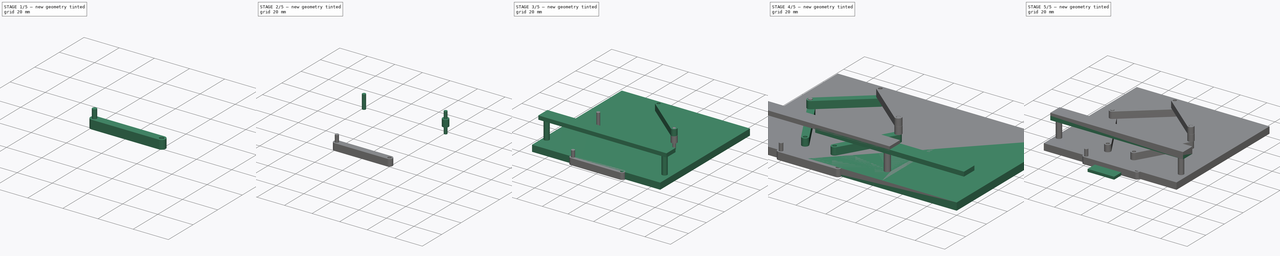
[diagram: build sequence overview — one tinted view per stage of 5, left to right]
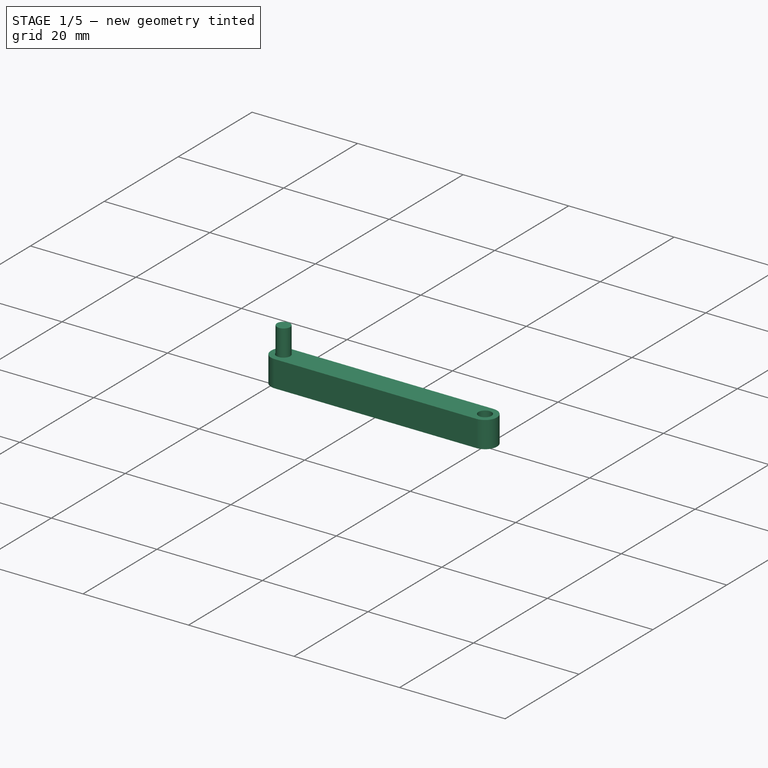
[diagram: stage 1 of 5 — iso view after this stage's code; geometry added in this stage tinted green]
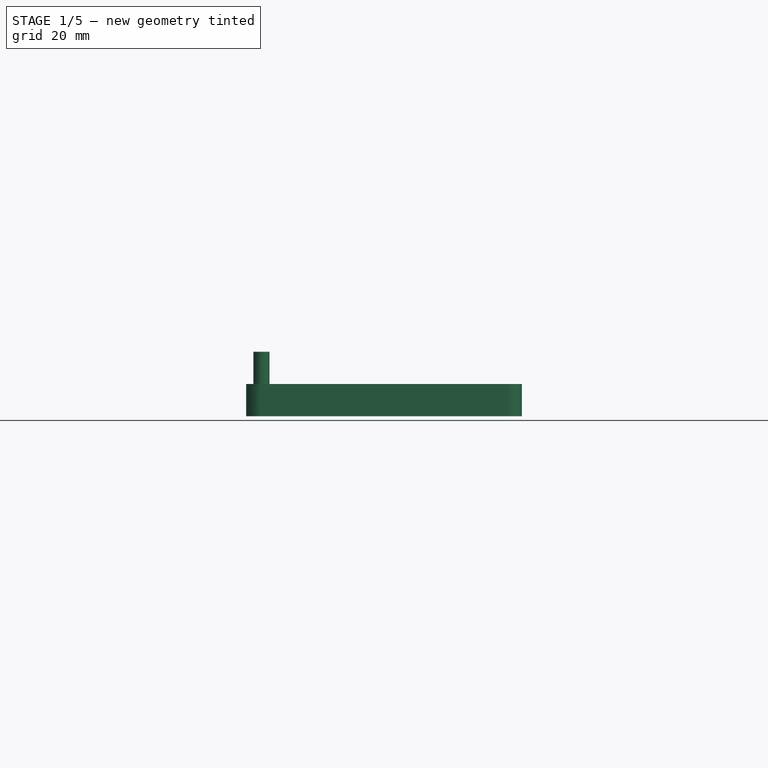
[diagram: stage 1 of 5 — front view after this stage's code; geometry added in this stage tinted green]
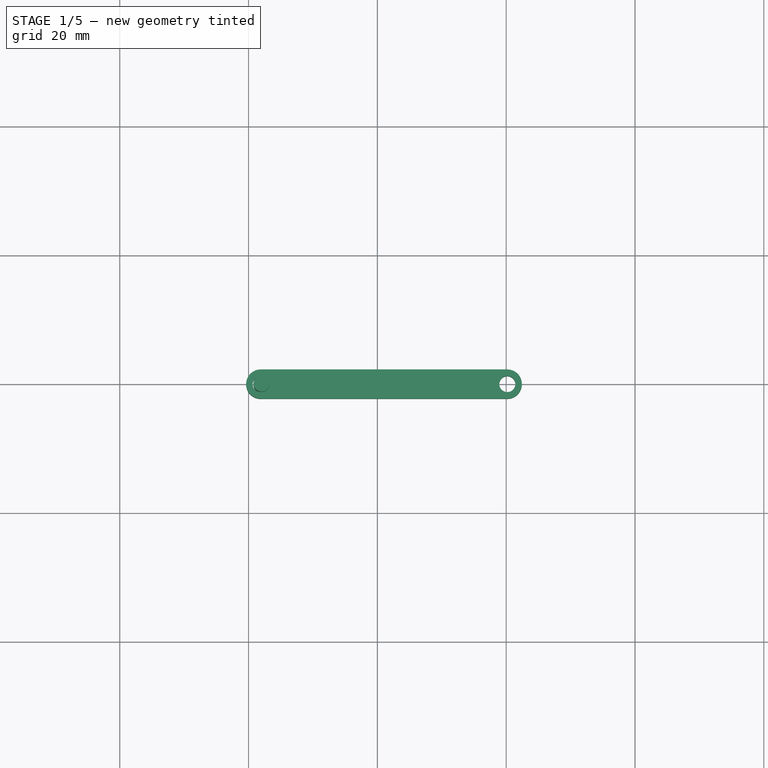
[diagram: stage 1 of 5 — top view after this stage's code; geometry added in this stage tinted green]
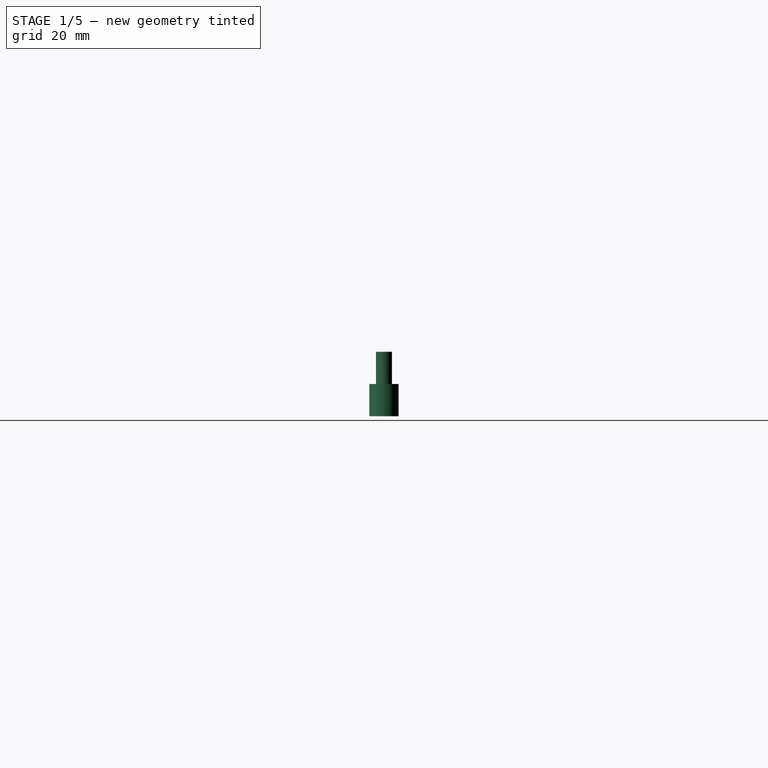
[diagram: stage 1 of 5 — right view after this stage's code; geometry added in this stage tinted green]
FCSTD DOCUMENT  (FreeCAD 0.19R24291 (Git))
Label: FBR_v2
License: All rights reserved
LicenseURL: http://en.wikipedia.org/wiki/All_rights_reserved
objects: Part::Feature×21, Part::FeaturePython×13, Part::Cylinder×6, PartDesign::Body×4, Part::MultiFuse×4, Sketcher::SketchObject×3, PartDesign::Pad×3, Part::Box×2, PartDesign::FeatureBase×1, PartDesign::Hole×1
note: 62 computed .brp shape members not serialized (recipe doc carries the construction recipe); baked Part::Feature solids carry a one-line shape summary decoded from their .brp

FEATURE [Part::FeaturePython] Clone005  label="def_ServoMotor_L_Scale"  # Draft clone (typed FeaturePython)
  AttacherType = Attacher::AttachEngine3D
  Fuse = false
  Objects = -> [Body003]
  Placement = pos=(10,12,11) rot=(1,0,0;1.5708rad)
  Scale = (0.1,0.1,0.1)
FEATURE [Part::FeaturePython] Clone006  label="def_ServoMotor_R_Scale"  # Draft clone (typed FeaturePython)
  AttacherType = Attacher::AttachEngine3D
  Fuse = false
  Objects = -> [Body003]
  Placement = pos=(-10,12,11) rot=(1,0,0;1.5708rad)
  Scale = (0.1,0.1,0.1)
FEATURE [Sketcher::SketchObject] Sketch
  FullyConstrained = false
  MapMode = 5
  Support = -> [XY_Plane004]
  sketch-geometry (4):
    g0: ArcOfCircle CenterX=-36.2276 CenterY=0 CenterZ=0 NormalX=0 NormalY=0 NormalZ=1 AngleXU=0 Radius=4.52517 StartAngle=1.5708 EndAngle=4.71239
    g1: ArcOfCircle CenterX=40.3501 CenterY=4e-16 CenterZ=0 NormalX=0 NormalY=0 NormalZ=1 AngleXU=0 Radius=4.52517 StartAngle=4.71239 EndAngle=7.85398
    g2: LineSegment StartX=-36.2276 StartY=-4.52517 StartZ=0 EndX=40.3501 EndY=-4.52517 EndZ=0
    g3: LineSegment StartX=-36.2276 StartY=4.52517 StartZ=0 EndX=40.3501 EndY=4.52517 EndZ=0
  constraints (7):
    c: Tangent(g0,g3) = 1.5708
    c: Tangent(g0,g2) = -1.5708
    c: Tangent(g2,g1) = -1.5708
    c: Tangent(g3,g1) = 1.5708
    c: Horizontal(g2)
    c: Equal(g0,g1)
    c: PointOnObject(g0,g-1)
FEATURE [PartDesign::Pad] Pad002
  Direction = (1,1,1)
  Length = 10
  Length2 = 100
  Profile = -> Sketch
  Type = 0
FEATURE [PartDesign::Hole] Hole
  BaseFeature = -> Pad002
  Depth = 25
  DepthType = 0
  Diameter = 5
  DrillForDepth = false
  DrillPoint = 1
  DrillPointAngle = 118
  HoleCutCountersinkAngle = 90
  HoleCutCustomValues = false
  HoleCutDepth = 0
  HoleCutDiameter = 6.1
  HoleCutType = 0
  ModelActualThread = false
  Profile = -> Pad002 [Face6]
  Tapered = false
  TaperedAngle = 90
  ThreadAngle = 0
  ThreadClass = 0
  ThreadCutOffInner = 0
  ThreadCutOffOuter = 0
  ThreadDirection = 0
  ThreadFit = 0
  ThreadPitch = 0
  ThreadSize = 0
  ThreadType = 0
  Threaded = false
FEATURE [Part::FeaturePython] Clone015  label="def_Link006_SampleScaled"  # Draft clone (typed FeaturePython)
  AttacherType = Attacher::AttachEngine3D
  Fuse = false
  Objects = -> [Body004]
  Scale = (0.5,0.5,0.5)
FEATURE [Part::Cylinder] Cylinder005  label="def_Link002_005"
  Angle = 360
  AttacherType = Attacher::AttachEngine3D
  Height = 10
  Placement = pos=(-18,0,0) rot=(0,0,1;0rad)
  Radius = 1.25
FEATURE [Part::MultiFuse] Fusion003
  Shapes = -> [Cylinder005,Clone015]
FEATURE [Part::Feature] pen001  label="def_PenTerminator001"
  shape: bbox 7.088 x 6.138 x 125.2 mm, 104 faces, 0 solids (baked)
FEATURE [Part::FeaturePython] Clone016  label="def_PenTerminal"  # Draft clone (typed FeaturePython)
  AttacherType = Attacher::AttachEngine3D
  Fuse = false
  Objects = -> [pen001]
  Scale = (0.5,0.5,0.2)
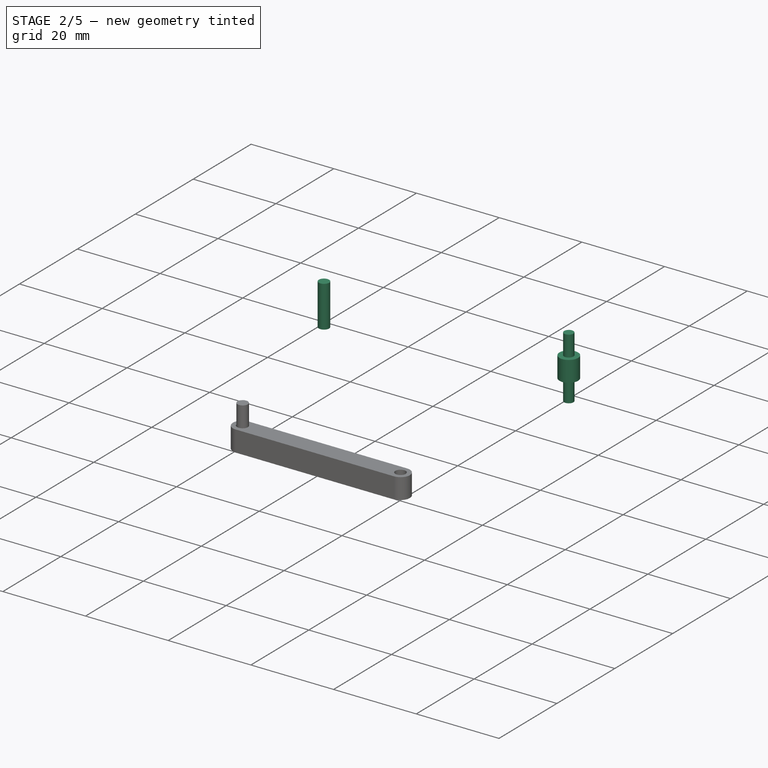
[diagram: stage 2 of 5 — iso view after this stage's code; geometry added in this stage tinted green]
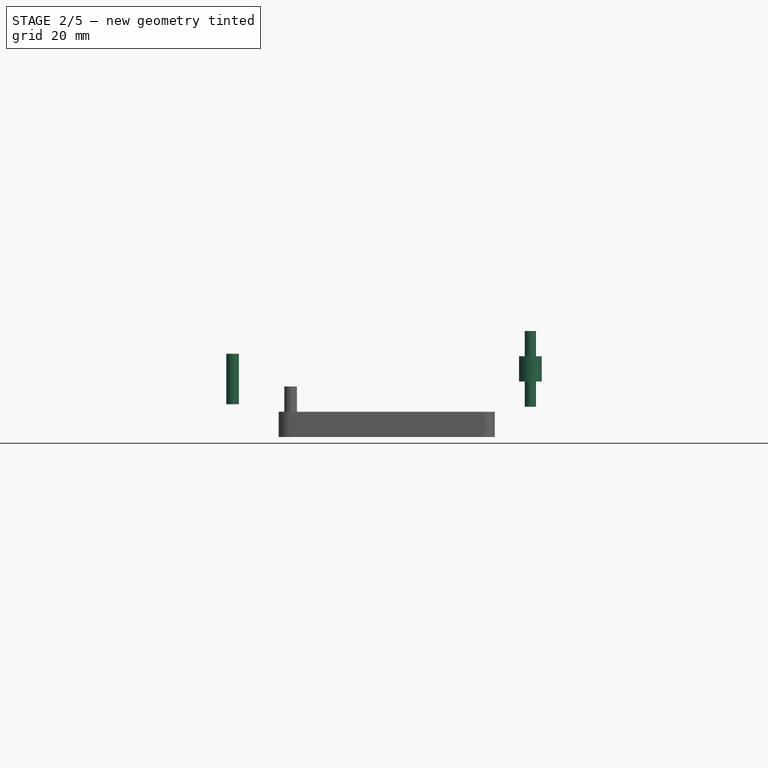
[diagram: stage 2 of 5 — front view after this stage's code; geometry added in this stage tinted green]
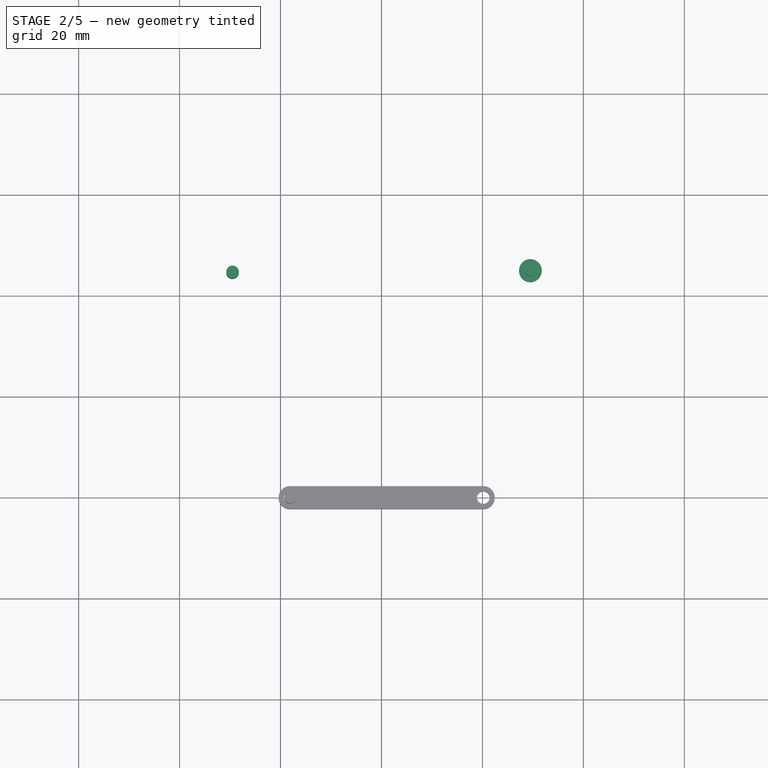
[diagram: stage 2 of 5 — top view after this stage's code; geometry added in this stage tinted green]
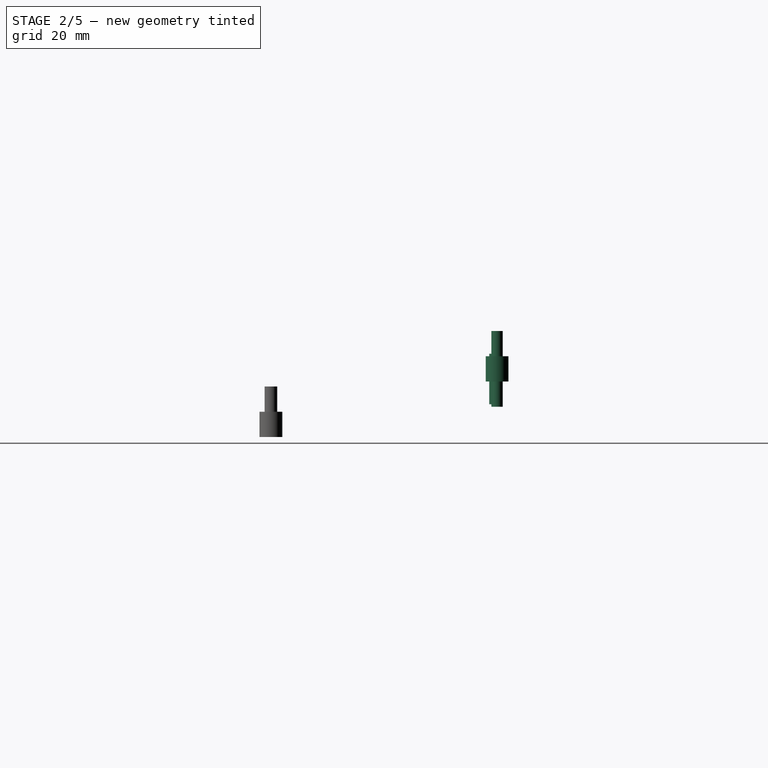
[diagram: stage 2 of 5 — right view after this stage's code; geometry added in this stage tinted green]
FEATURE [Part::Cylinder] Cylinder002
  Angle = 360
  AttacherType = Attacher::AttachEngine3D
  Height = 10
  Placement = pos=(0,10,5) rot=(0,0,1;0rad)
  Radius = 4.5
FEATURE [Part::Cylinder] Cylinder003
  Angle = 360
  AttacherType = Attacher::AttachEngine3D
  Height = 30
  Placement = pos=(0,10,-5) rot=(0,0,1;0rad)
  Radius = 2.25
FEATURE [Part::MultiFuse] Fusion002
  Shapes = -> [Cylinder003,Cylinder002]
FEATURE [Part::FeaturePython] Clone014  label="def_Link003_005"  # Draft clone (typed FeaturePython)
  AttacherType = Attacher::AttachEngine3D
  Fuse = false
  Objects = -> [Fusion002]
  Placement = pos=(29.5,39.8,8.5) rot=(0,0,1;0rad)
  Scale = (0.5,0.5,0.5)
FEATURE [Part::Cylinder] Cylinder004  label="def_Link002_004"
  Angle = 360
  AttacherType = Attacher::AttachEngine3D
  Height = 10
  Placement = pos=(-29.5,44.5,6.5) rot=(0,0,1;0rad)
  Radius = 1.25
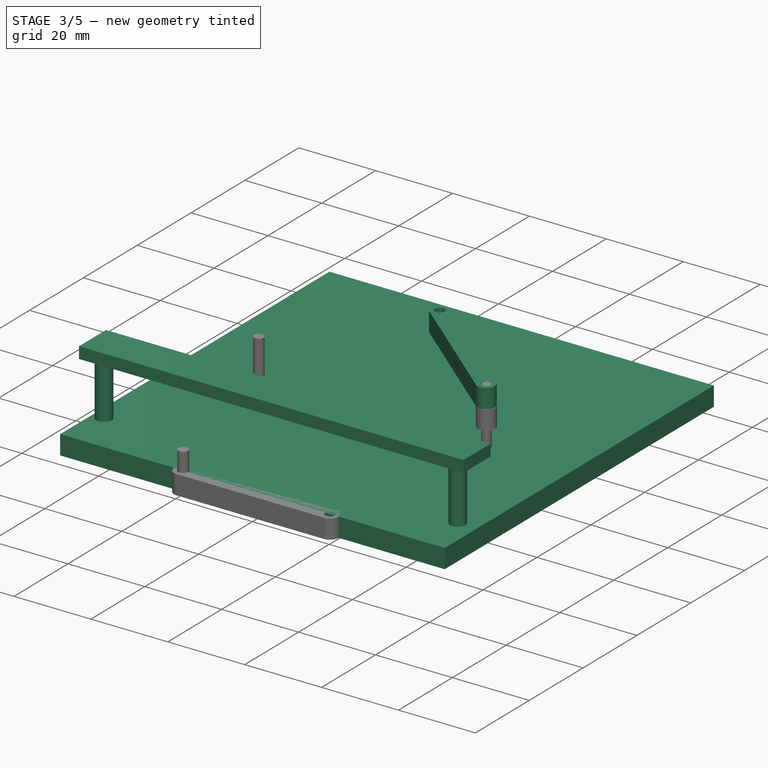
[diagram: stage 3 of 5 — iso view after this stage's code; geometry added in this stage tinted green]
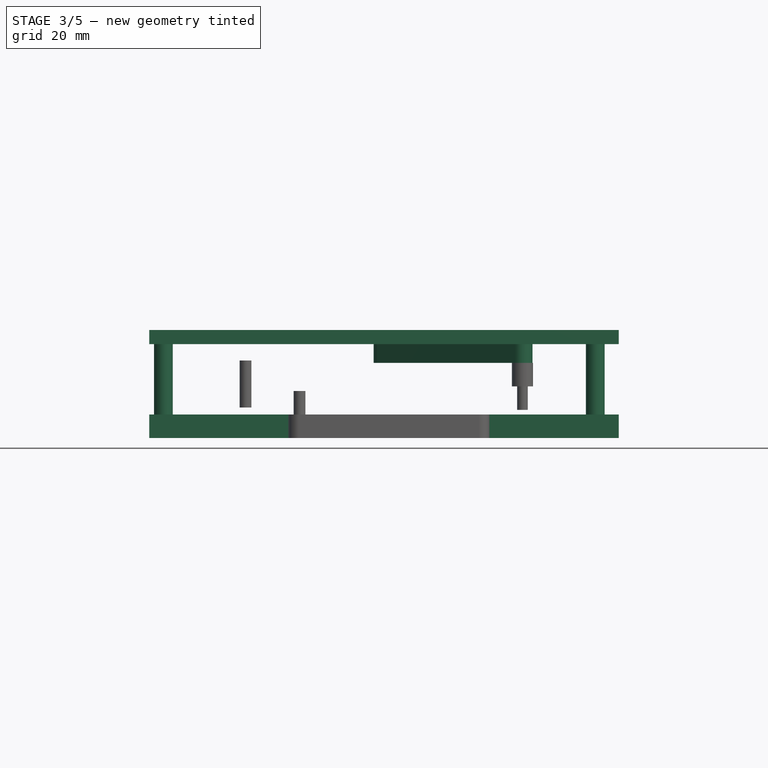
[diagram: stage 3 of 5 — front view after this stage's code; geometry added in this stage tinted green]
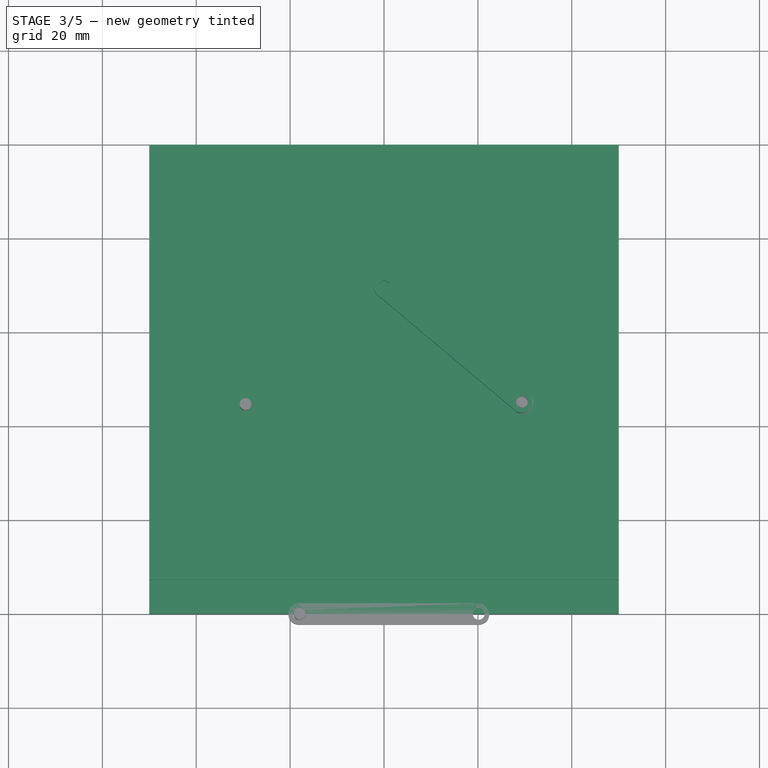
[diagram: stage 3 of 5 — top view after this stage's code; geometry added in this stage tinted green]
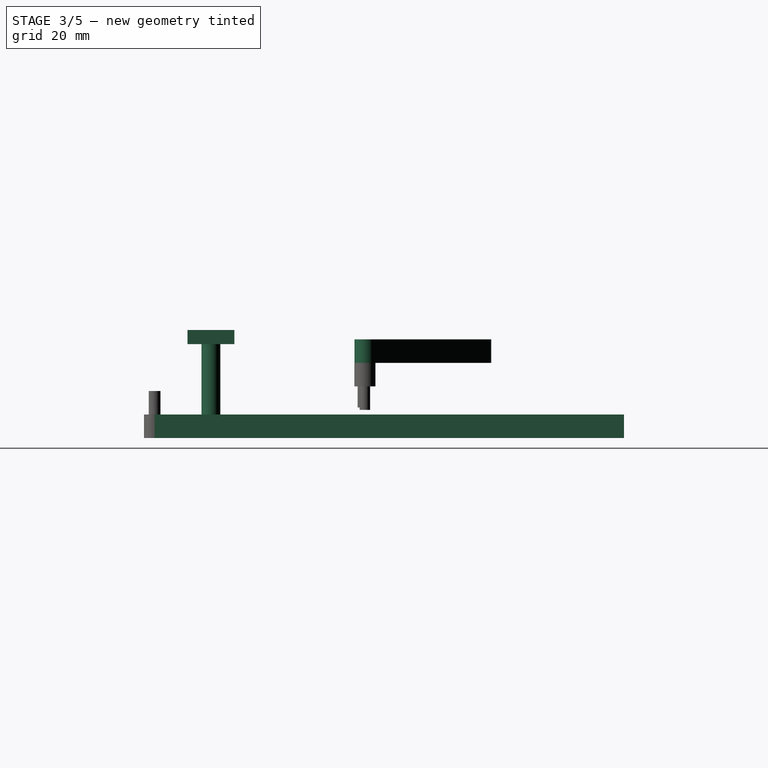
[diagram: stage 3 of 5 — right view after this stage's code; geometry added in this stage tinted green]
FEATURE [Part::FeaturePython] Clone011  label="def_Link005"  # Draft clone (typed FeaturePython)
  AttacherType = Attacher::AttachEngine3D
  Fuse = false
  Objects = -> [Body004]
  Placement = pos=(15.5,56.5,16) rot=(0,0,1;2.44346rad)
  Scale = (0.5,0.5,0.5)
FEATURE [Part::Feature] pen  label="def_PenTerminator"
  shape: bbox 7.088 x 6.138 x 125.2 mm, 104 faces, 0 solids (baked)
FEATURE [Part::FeaturePython] Clone013  label="def_Pen"  # Draft clone (typed FeaturePython)
  AttacherType = Attacher::AttachEngine3D
  Fuse = false
  Objects = -> [pen]
  Placement = pos=(0,69,7) rot=(0,0,1;0rad)
  Scale = (0.5,0.5,0.2)
FEATURE [Part::Feature] Box001003  label="BaseUpper002"
  Placement = pos=(0,7,20) rot=(0,0,1;0rad)
  shape: bbox 100 x 10 x 3 mm, 6 faces (baked)
FEATURE [Part::Feature] Box001004  label="BaseLow002"
  shape: bbox 100 x 100 x 5 mm, 6 faces (baked)
FEATURE [Part::Cylinder] Cylinder001  label="BaseSupportL"
  Angle = 360
  AttacherType = Attacher::AttachEngine3D
  Height = 20
  Placement = pos=(95,12,0) rot=(0,0,1;0rad)
  Radius = 2
FEATURE [Part::Cylinder] Cylinder  label="BaseSupportR"
  Angle = 360
  AttacherType = Attacher::AttachEngine3D
  Height = 20
  Placement = pos=(3,12,0) rot=(0,0,1;0rad)
  Radius = 2
FEATURE [Part::MultiFuse] Fusion001  label="def_BaseSupport"
  Placement = pos=(-50,0,0) rot=(0,0,1;0rad)
  Shapes = -> [Box001003,Box001004,Cylinder,Cylinder001]
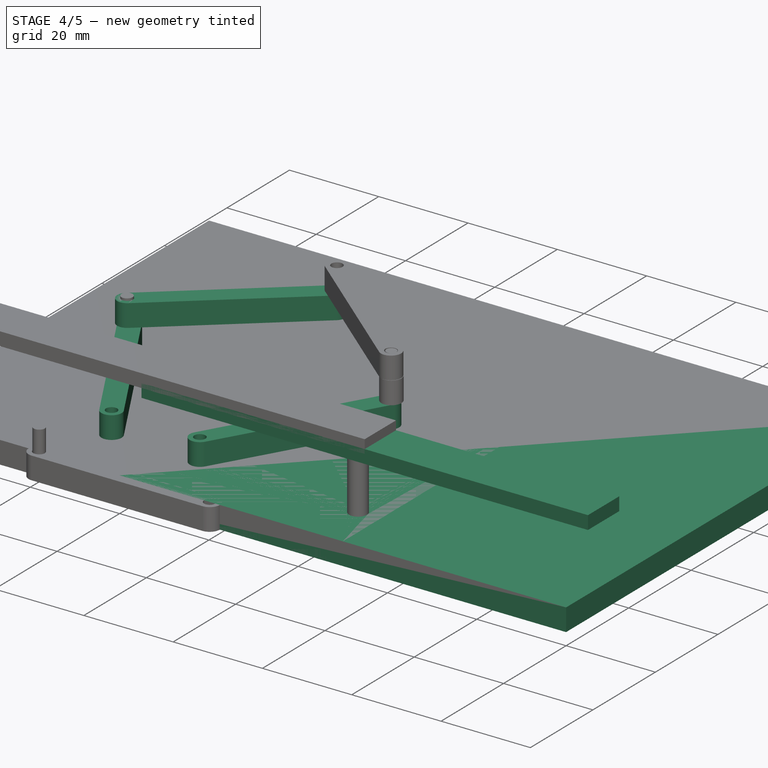
[diagram: stage 4 of 5 — iso view after this stage's code; geometry added in this stage tinted green]
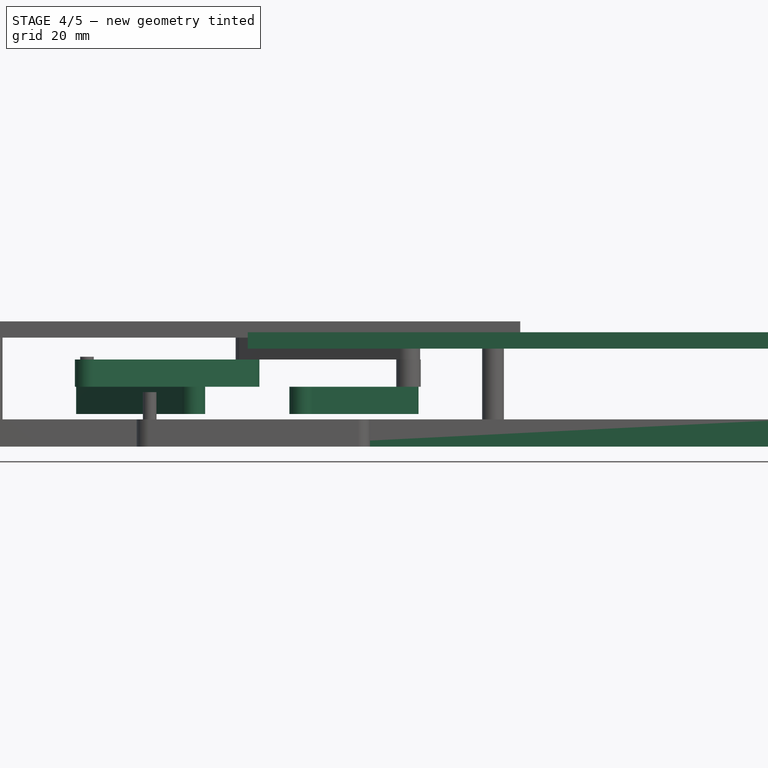
[diagram: stage 4 of 5 — front view after this stage's code; geometry added in this stage tinted green]
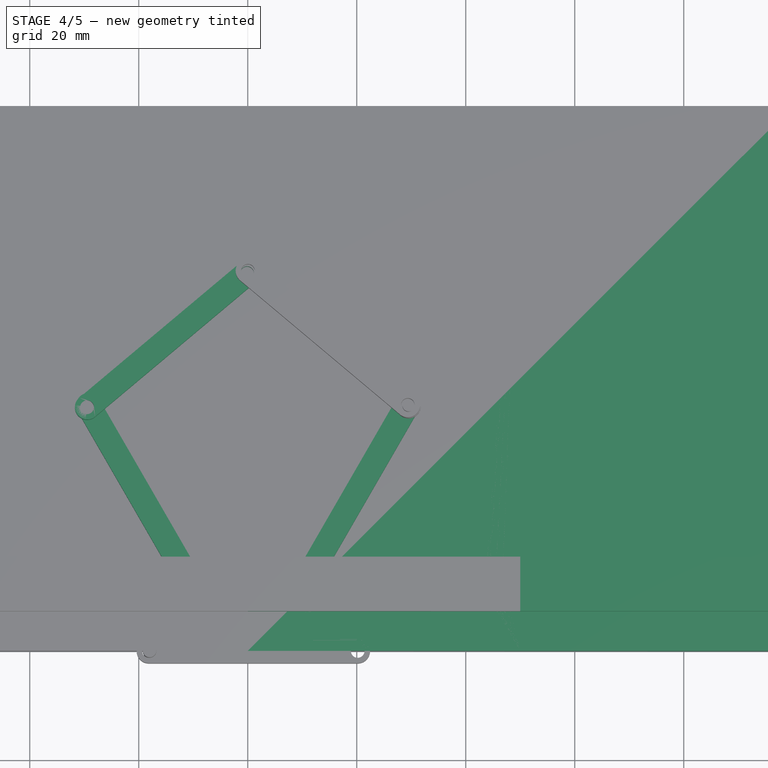
[diagram: stage 4 of 5 — top view after this stage's code; geometry added in this stage tinted green]
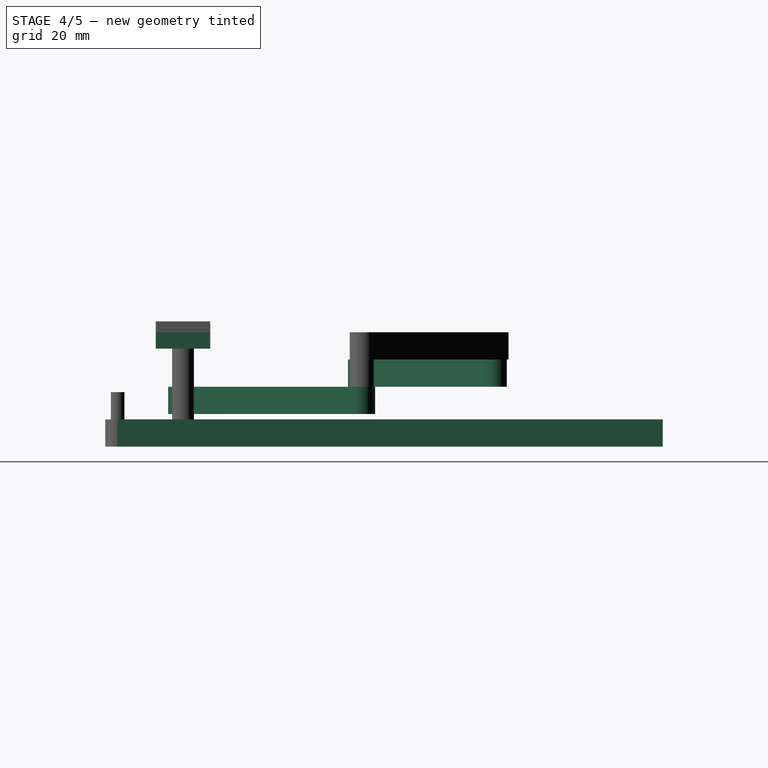
[diagram: stage 4 of 5 — right view after this stage's code; geometry added in this stage tinted green]
FEATURE [Part::Feature] Part__Feature011  label="Throttle body place holder011"
  shape: bbox 38.25 x 6 x 76.5 mm, 1 faces, 0 solids (baked)
FEATURE [Part::Feature] Part__Feature015  label="Throttle body place holder015"
  shape: bbox 41.4 x 0.855 x 82.8 mm, 1 faces, 0 solids (baked)
FEATURE [Part::Feature] Part__Feature013  label="Throttle body place holder013"
  shape: bbox 38.81 x 0.855 x 77.62 mm, 1 faces, 0 solids (baked)
FEATURE [Part::Feature] Part__Feature014  label="Throttle body place holder014"
  shape: bbox 41.4 x 0.855 x 82.8 mm, 1 faces, 0 solids (baked)
FEATURE [Part::Feature] Part__Feature012  label="Throttle body place holder012"
  shape: bbox 75.5 x 2e-07 x 75.5 mm, 1 faces, 0 solids (baked)
FEATURE [Part::Feature] Part__Feature016  label="Throttle body place holder016"
  shape: bbox 38.81 x 0.855 x 77.62 mm, 1 faces, 0 solids (baked)
FEATURE [Part::Feature] Part__Feature017  label="Throttle body place holder017"
  shape: bbox 38.25 x 6 x 76.5 mm, 1 faces, 0 solids (baked)
FEATURE [Part::Feature] Part__Feature010  label="Throttle body place holder010"
  shape: bbox 38.25 x 1 x 76.5 mm, 1 faces, 0 solids (baked)
FEATURE [Part::Feature] Part__Feature009  label="Throttle body place holder009"
  shape: bbox 37.25 x 17.5 x 74.5 mm, 1 faces, 0 solids (baked)
FEATURE [Part::Feature] Part__Feature006  label="Throttle body place holder006"
  shape: bbox 35 x 90 x 70 mm, 1 faces, 0 solids (baked)
FEATURE [Part::Feature] Part__Feature003  label="Throttle body place holder003"
  shape: bbox 38.25 x 1 x 76.5 mm, 1 faces, 0 solids (baked)
FEATURE [Part::Feature] Part__Feature005  label="Throttle body place holder005"
  shape: bbox 35 x 90 x 70 mm, 1 faces, 0 solids (baked)
FEATURE [Part::Feature] Part__Feature007  label="Throttle body place holder007"
  shape: bbox 38.25 x 21.5 x 76.5 mm, 1 faces, 0 solids (baked)
FEATURE [Part::Feature] Part__Feature004  label="Throttle body place holder004"
  shape: bbox 38.25 x 21.5 x 76.5 mm, 1 faces, 0 solids (baked)
FEATURE [Part::Feature] Part__Feature008  label="Throttle body place holder008"
  shape: bbox 38.25 x 1 x 76.5 mm, 1 faces, 0 solids (baked)
FEATURE [Part::Feature] Part__Feature002  label="Throttle body place holder002"
  shape: bbox 37.25 x 17.5 x 74.5 mm, 1 faces, 0 solids (baked)
FEATURE [Part::Feature] Part__Feature001  label="Throttle body place holder001"
  shape: bbox 38.25 x 1 x 76.5 mm, 1 faces, 0 solids (baked)
FEATURE [Part::FeaturePython] Connect  # WARN: FeaturePython — macro-defined, semantics opaque (R4)
  Objects = -> [Part__Feature001,Part__Feature002,Part__Feature003,Part__Feature004,Part__Feature005,Part__Feature006,Part__Feature007,Part__Feature008,Part__Feature009,Part__Feature010,Part__Feature011,Part__Feature012,Part__Feature013,Part__Feature014,Part__Feature015,Part__Feature016,Part__Feature017]
  Tolerance = 0
FEATURE [PartDesign::FeatureBase] Clone
  BaseFeature = -> Connect
FEATURE [PartDesign::Body] Body003  label="def_ServoMotor"
  BaseFeature = -> Connect
  Group = -> [Clone]
  Origin = -> Origin
  Tip = -> Clone
FEATURE [Part::Box] Box001  label="BaseLow"
  AttacherType = Attacher::AttachEngine3D
  Height = 5
  Length = 100
  Width = 100
FEATURE [Part::Box] Box  label="BaseUpper"
  AttacherType = Attacher::AttachEngine3D
  Height = 3
  Length = 100
  Placement = pos=(0,7,18) rot=(0.099504,0,0.995037;0rad)
  Width = 10
FEATURE [PartDesign::Body] Body004  label="def_Link"
  Group = -> [Sketch,Pad002,Hole]
  Origin = -> Origin004
  Tip = -> Hole
FEATURE [Part::FeaturePython] Clone008  label="def_Link002"  # Draft clone (typed FeaturePython)
  AttacherType = Attacher::AttachEngine3D
  Fuse = false
  Objects = -> [Body004]
  Placement = pos=(-19.13,27.5,6) rot=(0,0,1;2.0944rad)
  Scale = (0.5,0.5,0.5)
FEATURE [Part::FeaturePython] Clone009  label="def_Link003"  # Draft clone (typed FeaturePython)
  AttacherType = Attacher::AttachEngine3D
  Fuse = false
  Objects = -> [Body004]
  Placement = pos=(20,29,6) rot=(0,0,1;4.18879rad)
  Scale = (0.5,0.5,0.5)
FEATURE [Part::FeaturePython] Clone010  label="def_Link004"  # Draft clone (typed FeaturePython)
  AttacherType = Attacher::AttachEngine3D
  Fuse = false
  Objects = -> [Body004]
  Placement = pos=(-14,57.5,11) rot=(0,0,1;3.83972rad)
  Scale = (0.5,0.5,0.5)
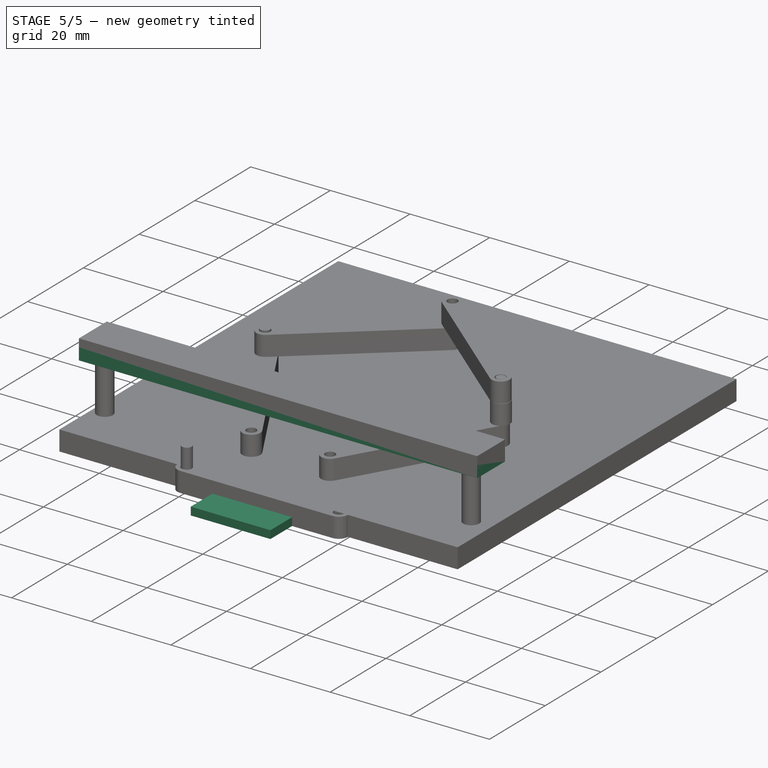
[diagram: stage 5 of 5 — iso view after this stage's code; geometry added in this stage tinted green]
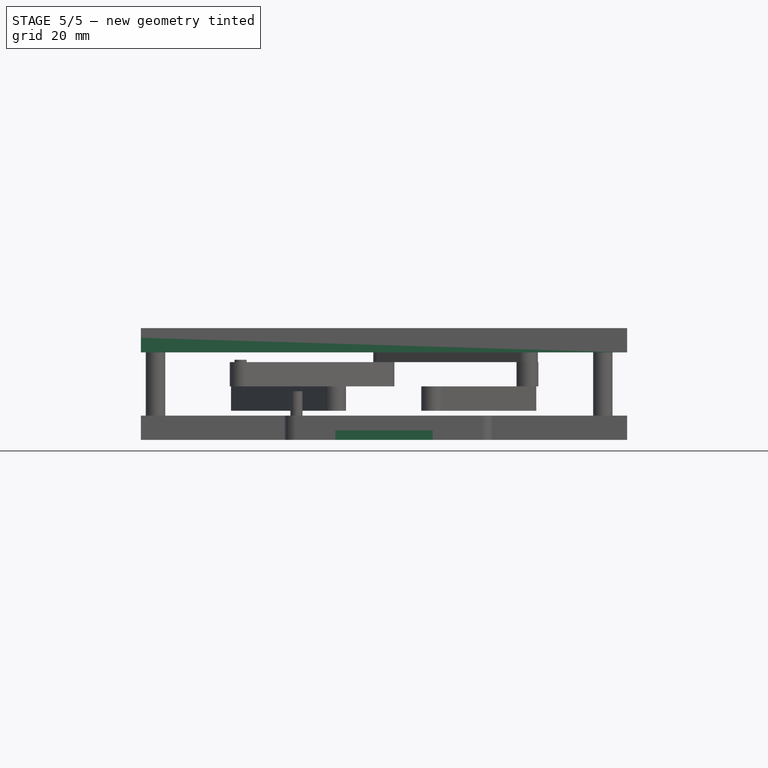
[diagram: stage 5 of 5 — front view after this stage's code; geometry added in this stage tinted green]
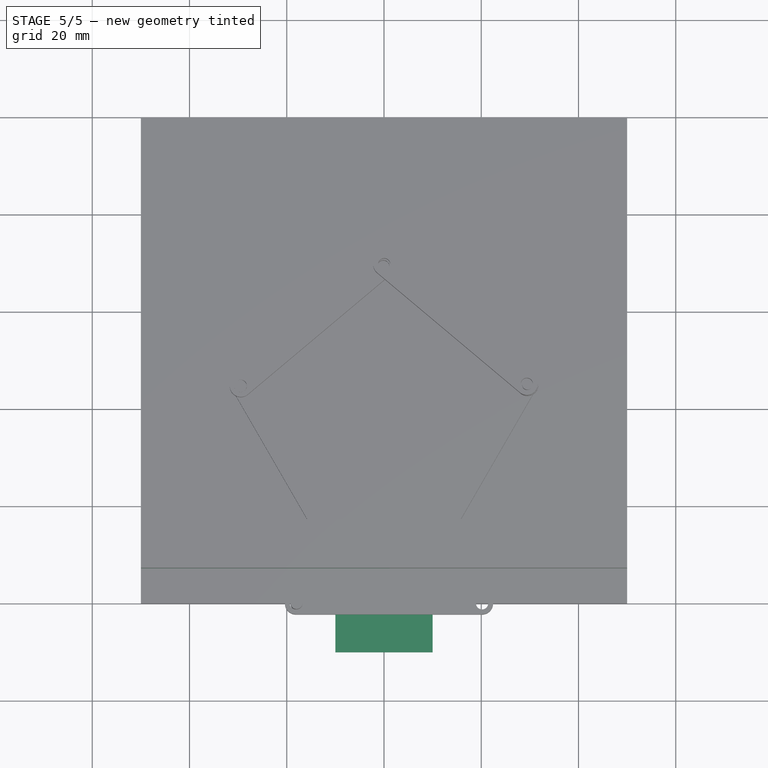
[diagram: stage 5 of 5 — top view after this stage's code; geometry added in this stage tinted green]
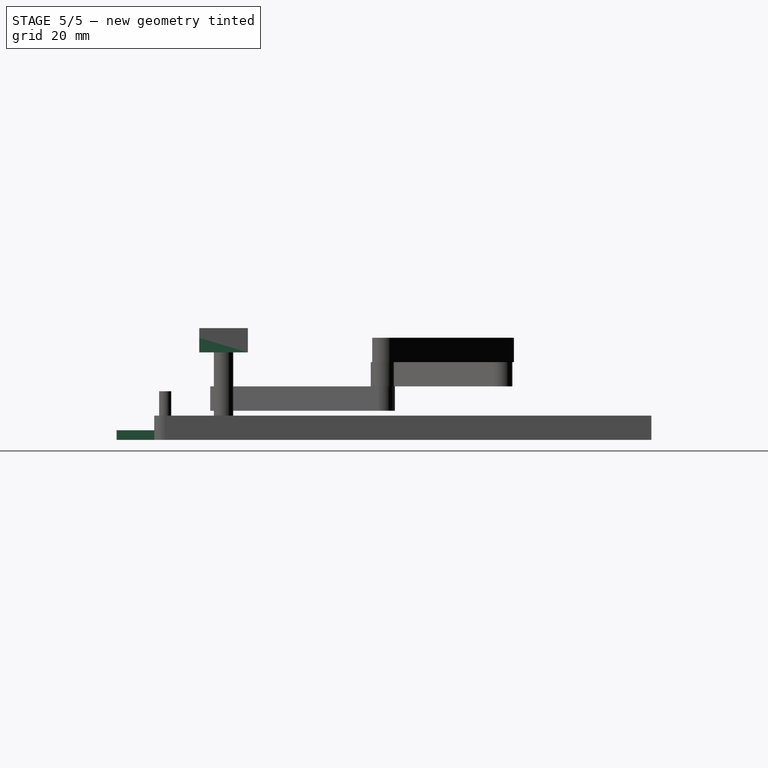
[diagram: stage 5 of 5 — right view after this stage's code; geometry added in this stage tinted green]
FEATURE [Sketcher::SketchObject] Sketch001
  FullyConstrained = true
  MapMode = 5
  Support = -> [XY_Plane001]
  sketch-geometry (4):
    g0: LineSegment StartX=-10 StartY=10 StartZ=0 EndX=10 EndY=10 EndZ=0
    g1: LineSegment StartX=10 StartY=10 StartZ=0 EndX=10 EndY=-10 EndZ=0
    g2: LineSegment StartX=10 StartY=-10 StartZ=0 EndX=-10 EndY=-10 EndZ=0
    g3: LineSegment StartX=-10 StartY=-10 StartZ=0 EndX=-10 EndY=10 EndZ=0
  constraints (10):
    c: Coincident(g0,g1)
    c: Coincident(g1,g2)
    c: Coincident(g2,g3)
    c: Coincident(g3,g0)
    c: Horizontal(g0)
    c: Vertical(g3)
    c: Symmetric(g1,g0,g-1)
    c: Symmetric(g1,g2,g-2)
    c: DistanceX(g0,g0) = 20
    c: Equal(g1,g0)
FEATURE [Sketcher::SketchObject] Sketch002
  FullyConstrained = false
  MapMode = 5
  Support = -> [XY_Plane003]
  sketch-geometry (4):
    g0: LineSegment StartX=-10 StartY=9.97927 StartZ=0 EndX=10 EndY=9.97927 EndZ=0
    g1: LineSegment StartX=10 StartY=9.97927 StartZ=0 EndX=10 EndY=7.93324 EndZ=0
    g2: LineSegment StartX=10 StartY=7.93324 StartZ=0 EndX=-10 EndY=7.93324 EndZ=0
    g3: LineSegment StartX=-10 StartY=7.93324 StartZ=0 EndX=-10 EndY=9.97927 EndZ=0
  constraints (9):
    c: Coincident(g0,g1)
    c: Coincident(g1,g2)
    c: Coincident(g2,g3)
    c: Coincident(g3,g0)
    c: Horizontal(g0)
    c: Vertical(g1)
    c: Vertical(g3)
    c: DistanceX(g2,g2) = 20
    c: Symmetric(g1,g2,g-2)
FEATURE [PartDesign::Pad] Pad001
  Direction = (1,1,1)
  Length = 3.5
  Length2 = 100
  Profile = -> Sketch002
  Type = 0
FEATURE [PartDesign::Body] Body002
  Group = -> [Sketch002,Pad001]
  Origin = -> Origin003
  Tip = -> Pad001
FEATURE [PartDesign::Pad] Pad
  Direction = (1,1,1)
  Length = 2
  Length2 = 100
  Profile = -> Sketch001
  Type = 0
FEATURE [PartDesign::Body] Body
  Group = -> [Sketch001,Pad]
  Origin = -> Origin001
  Tip = -> Pad
FEATURE [Part::FeaturePython] Embed  # WARN: FeaturePython — macro-defined, semantics opaque (R4)
  Base = -> Body002
  Tolerance = 0
  Tool = -> Body
FEATURE [Part::MultiFuse] Fusion
  Placement = pos=(-50,0,0) rot=(0,0,1;0rad)
  Shapes = -> [Box001,Box]
FEATURE [Part::FeaturePython] refine001  label="def_Base"  # WARN: FeaturePython — macro-defined, semantics opaque (R4)
  Base = -> Fusion
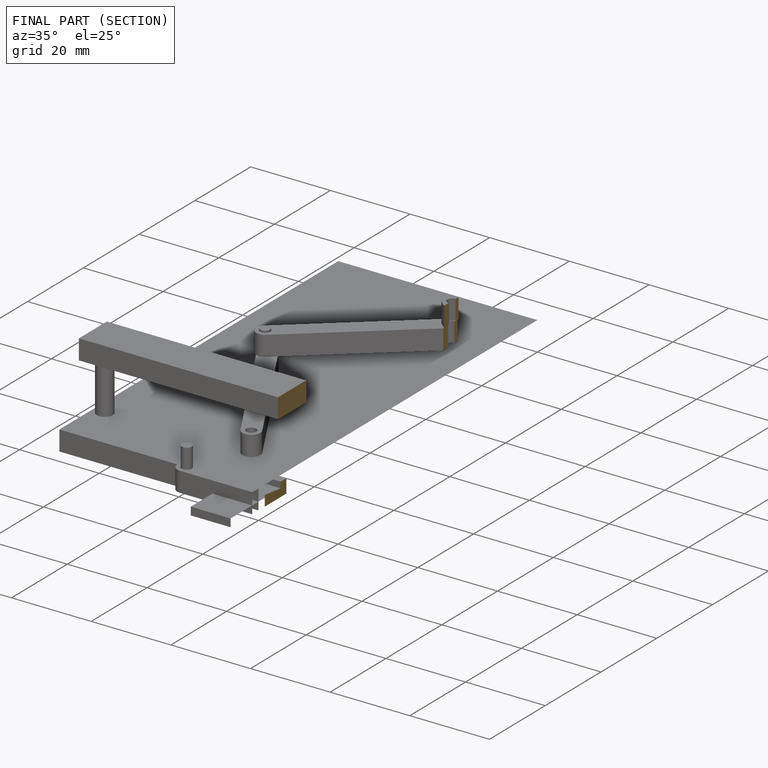
[diagram: finished part — half-section view (interior)]
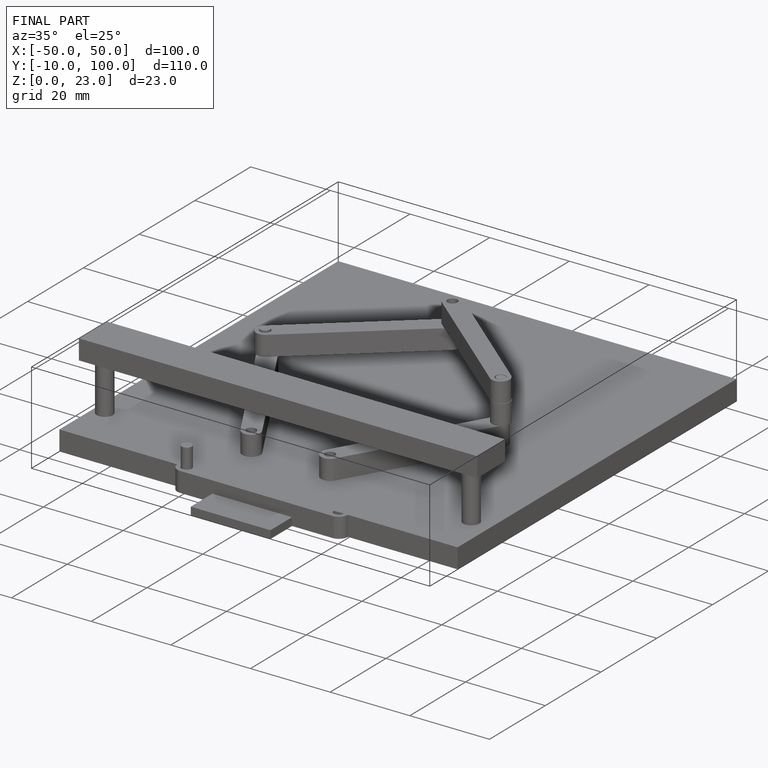
[diagram: finished part — iso view with bounding-box wireframe]
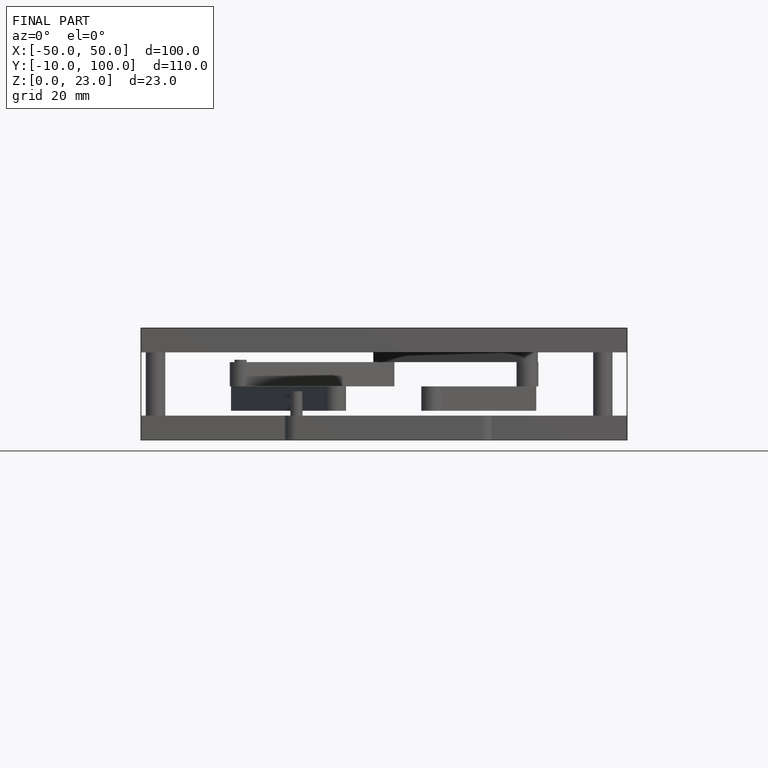
[diagram: finished part — front view with bounding-box wireframe]
